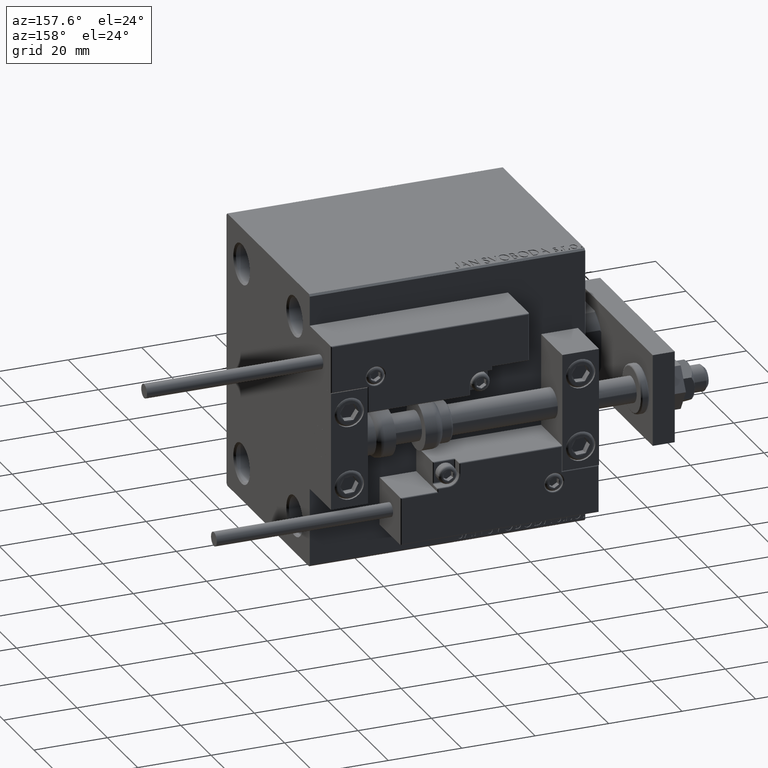
[diagram: clean part render]
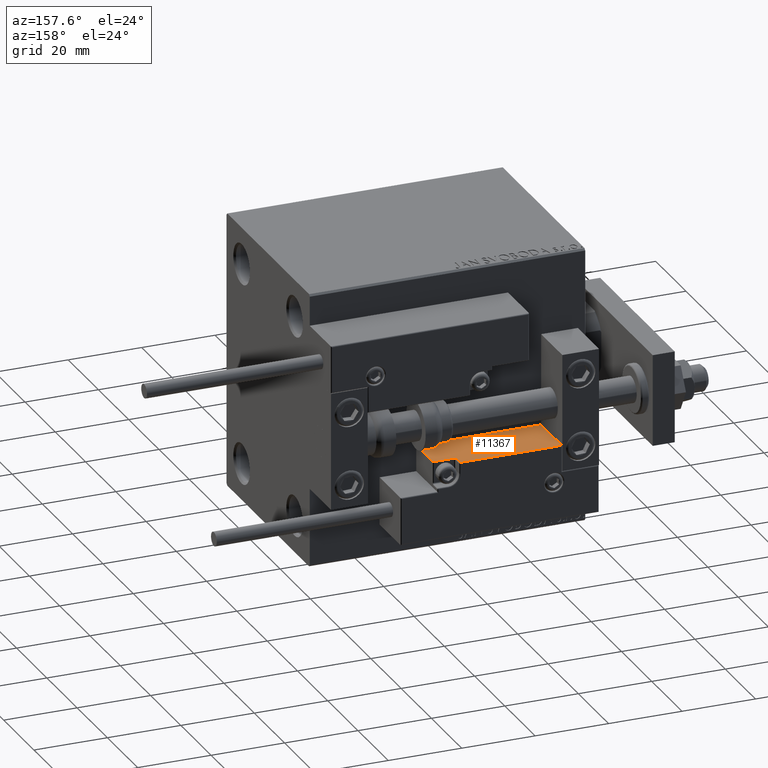
[diagram: same view with one face highlighted and labeled with its STEP entity id]
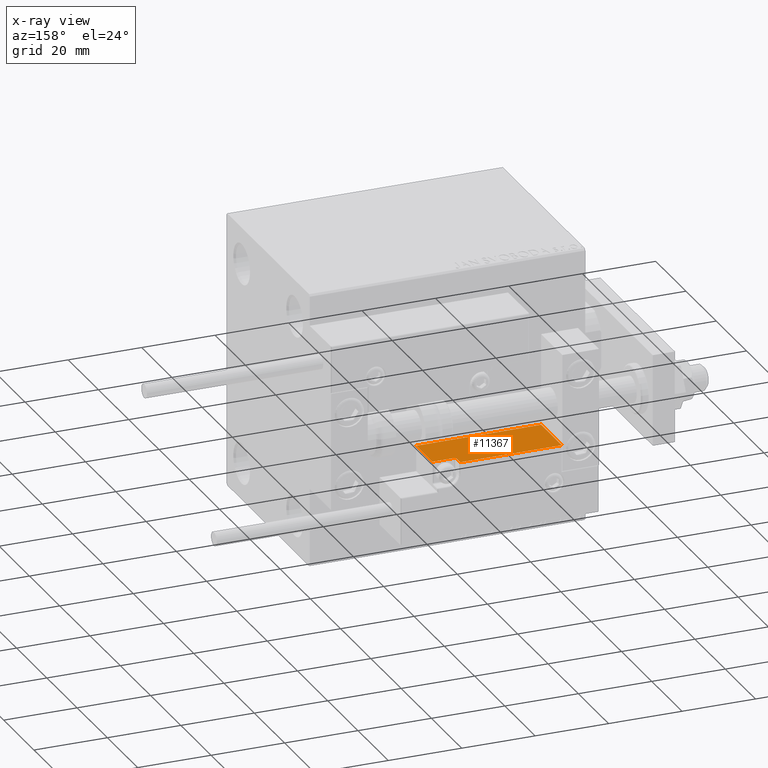
[diagram: x-ray of the same camera — body ghosted, the highlighted face saturated]
A machine part, auxiliary view. The second image highlights one B-rep face of the part: STEP entity #11367.
The next image is the same camera in x-ray: the body ghosted, the highlighted face saturated — about 0% of this face is hidden behind the body in this view.
In plain terms, the highlighted planar face has unit normal (-0, -0, -1).
Its self-contained STEP definition (entity closure, byte-faithful):
#231 = CIRCLE ( 'NONE', #12703, 0.5999999999999998668 ) ;
#321 = CARTESIAN_POINT ( 'NONE',  ( 11.29999999999999893, 3.252606517456513302E-15, 11.29999999999999893 ) ) ;
#1623 = EDGE_CURVE ( 'NONE', #36487, #17284, #23262, .T. ) ;
#2373 = CARTESIAN_POINT ( 'NONE',  ( 16.99999999999999289, 3.252606517456513302E-15, 14.00000000000000000 ) ) ;
#3036 = VECTOR ( 'NONE', #14081, 1000.000000000000000 ) ;
#3480 = CARTESIAN_POINT ( 'NONE',  ( 16.99999999999999289, 3.252606517456513302E-15, 10.69999999999999929 ) ) ;
#3747 = CARTESIAN_POINT ( 'NONE',  ( -16.99999999999999289, 3.252606517456513302E-15, 13.70000000000000107 ) ) ;
#4184 = DIRECTION ( 'NONE',  ( 0.000000000000000000, 1.000000000000000000, 0.000000000000000000 ) ) ;
#4573 = CARTESIAN_POINT ( 'NONE',  ( -16.99999999999999289, 3.252606517456513302E-15, 0.000000000000000000 ) ) ;
#4726 = VERTEX_POINT ( 'NONE', #4573 ) ;
#4905 = ORIENTED_EDGE ( 'NONE', *, *, #48606, .F. ) ;
#5352 = ORIENTED_EDGE ( 'NONE', *, *, #17765, .T. ) ;
#5650 = DIRECTION ( 'NONE',  ( -1.000000000000000000, 0.000000000000000000, -0.000000000000000000 ) ) ;
#7056 = FACE_OUTER_BOUND ( 'NONE', #47681, .T. ) ;
#11104 = VECTOR ( 'NONE', #5650, 1000.000000000000000 ) ;
#11367 = ADVANCED_FACE ( 'NONE', ( #7056 ), #22905, .F. ) ;
#11794 = CARTESIAN_POINT ( 'NONE',  ( -16.99999999999999289, 3.252606517456513302E-15, 0.000000000000000000 ) ) ;
#12284 = DIRECTION ( 'NONE',  ( -0.000000000000000000, -1.000000000000000000, -0.000000000000000000 ) ) ;
#12703 = AXIS2_PLACEMENT_3D ( 'NONE', #321, #12284, #12791 ) ;
#12791 = DIRECTION ( 'NONE',  ( 0.000000000000000000, 0.000000000000000000, 1.000000000000000000 ) ) ;
#14081 = DIRECTION ( 'NONE',  ( -0.000000000000000000, -0.000000000000000000, -1.000000000000000000 ) ) ;
#14417 = EDGE_CURVE ( 'NONE', #17851, #4726, #26186, .T. ) ;
#15374 = EDGE_CURVE ( 'NONE', #36487, #37145, #231, .T. ) ;
#16374 = VECTOR ( 'NONE', #49776, 1000.000000000000000 ) ;
#17284 = VERTEX_POINT ( 'NONE', #28856 ) ;
#17446 = CARTESIAN_POINT ( 'NONE',  ( 11.29999999999999893, 3.252606517456513302E-15, 10.69999999999999929 ) ) ;
#17765 = EDGE_CURVE ( 'NONE', #23771, #37145, #48524, .T. ) ;
#17851 = VERTEX_POINT ( 'NONE', #3747 ) ;
#20027 = CARTESIAN_POINT ( 'NONE',  ( -16.99999999999999289, 3.252606517456513302E-15, 14.00000000000000000 ) ) ;
#22493 = CARTESIAN_POINT ( 'NONE',  ( 10.70000000000000107, 3.252606517456513302E-15, 14.00000000000000000 ) ) ;
#22905 = PLANE ( 'NONE',  #25823 ) ;
#23262 = LINE ( 'NONE', #22493, #46938 ) ;
#23736 = EDGE_CURVE ( 'NONE', #4726, #24846, #49978, .T. ) ;
#23771 = VERTEX_POINT ( 'NONE', #3480 ) ;
#24846 = VERTEX_POINT ( 'NONE', #41886 ) ;
#25823 = AXIS2_PLACEMENT_3D ( 'NONE', #20027, #4184, #38750 ) ;
#26186 = LINE ( 'NONE', #29321, #28425 ) ;
#26620 = CARTESIAN_POINT ( 'NONE',  ( 11.00000000000000000, 3.252606517456513302E-15, 10.69999999999999929 ) ) ;
#28425 = VECTOR ( 'NONE', #38137, 1000.000000000000000 ) ;
#28514 = ORIENTED_EDGE ( 'NONE', *, *, #23736, .T. ) ;
#28856 = CARTESIAN_POINT ( 'NONE',  ( 10.70000000000000107, 3.252606517456513302E-15, 13.70000000000000107 ) ) ;
#29230 = EDGE_CURVE ( 'NONE', #17284, #17851, #38347, .T. ) ;
#29321 = CARTESIAN_POINT ( 'NONE',  ( -16.99999999999999289, 3.252606517456513302E-15, 14.00000000000000000 ) ) ;
#30788 = CARTESIAN_POINT ( 'NONE',  ( 10.70000000000000107, 3.252606517456513302E-15, 11.29999999999999893 ) ) ;
#33203 = ORIENTED_EDGE ( 'NONE', *, *, #1623, .T. ) ;
#33934 = CARTESIAN_POINT ( 'NONE',  ( -16.99999999999999289, 3.252606517456513302E-15, 13.70000000000000107 ) ) ;
#34313 = LINE ( 'NONE', #2373, #3036 ) ;
#34440 = DIRECTION ( 'NONE',  ( 0.000000000000000000, -0.000000000000000000, 1.000000000000000000 ) ) ;
#35957 = DIRECTION ( 'NONE',  ( 1.000000000000000000, 0.000000000000000000, 0.000000000000000000 ) ) ;
#36099 = VECTOR ( 'NONE', #35957, 1000.000000000000000 ) ;
#36370 = ORIENTED_EDGE ( 'NONE', *, *, #14417, .T. ) ;
#36487 = VERTEX_POINT ( 'NONE', #30788 ) ;
#37145 = VERTEX_POINT ( 'NONE', #17446 ) ;
#38137 = DIRECTION ( 'NONE',  ( -0.000000000000000000, -0.000000000000000000, -1.000000000000000000 ) ) ;
#38347 = LINE ( 'NONE', #33934, #16374 ) ;
#38750 = DIRECTION ( 'NONE',  ( 0.000000000000000000, -0.000000000000000000, 1.000000000000000000 ) ) ;
#39157 = ORIENTED_EDGE ( 'NONE', *, *, #15374, .F. ) ;
#40711 = ORIENTED_EDGE ( 'NONE', *, *, #29230, .T. ) ;
#41886 = CARTESIAN_POINT ( 'NONE',  ( 16.99999999999999289, 3.252606517456513302E-15, 0.000000000000000000 ) ) ;
#46938 = VECTOR ( 'NONE', #34440, 1000.000000000000000 ) ;
#47681 = EDGE_LOOP ( 'NONE', ( #4905, #5352, #39157, #33203, #40711, #36370, #28514 ) ) ;
#48524 = LINE ( 'NONE', #26620, #11104 ) ;
#48606 = EDGE_CURVE ( 'NONE', #23771, #24846, #34313, .T. ) ;
#49776 = DIRECTION ( 'NONE',  ( -1.000000000000000000, 0.000000000000000000, -0.000000000000000000 ) ) ;
#49978 = LINE ( 'NONE', #11794, #36099 ) ;